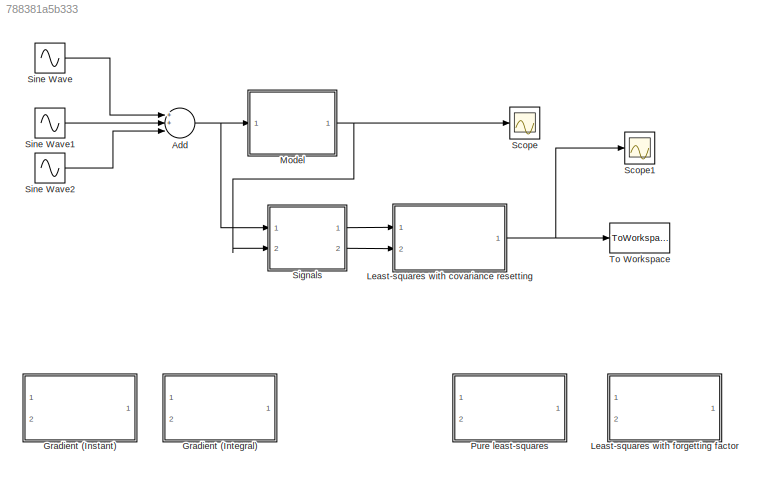
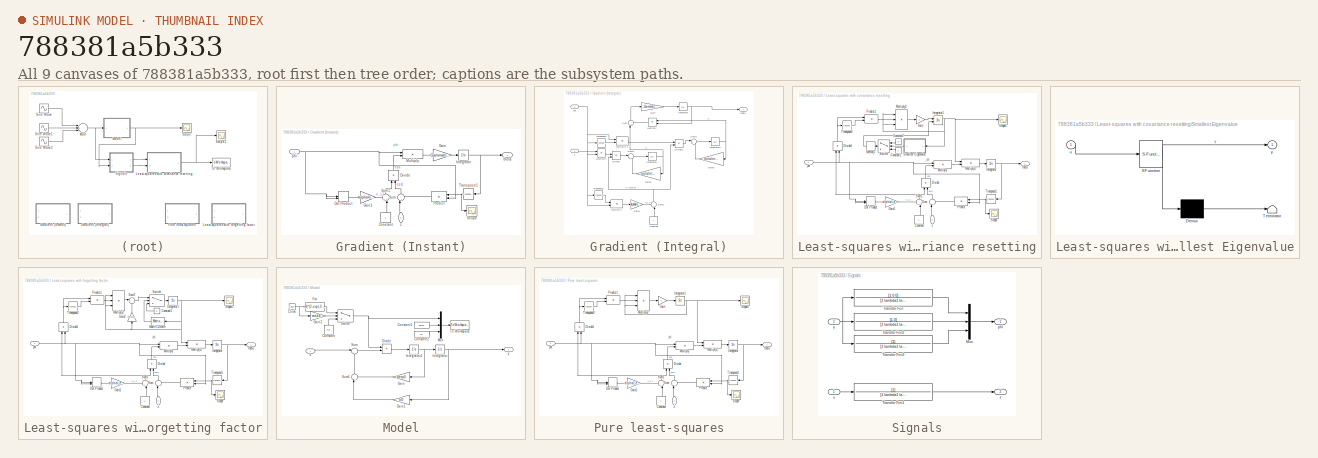
[diagram: thumbnail index - all 9 canvases of the model, root first then tree order]
MODEL slx_788381a5b333
KIND model
CONFIG AbsTol = auto
CONFIG EnableMultiTasking = off
CONFIG FixedStep = auto
CONFIG MaxStep = auto
CONFIG MinStep = auto
CONFIG RelTol = 1e-3
CONFIG SampleTimeConstraint = Unconstrained
CONFIG Solver = VariableStepAuto
CONFIG SolverName = VariableStepAuto
CONFIG StartTime = 0.0
CONFIG StopTime = 1000
BLOCK [Sum] Add
  InputSameDT = off
  Inputs = 3
  OutDataTypeStr = Inherit: Inherit via internal rule
  Ports = [3, 1]
  SaturateOnIntegerOverflow = off
BLOCK [SubSystem] Gradient (Instant)
  Commented = on
  Ports = [2, 1]
  RequestExecContextInheritance = off
BLOCK [Constant] Gradient (Instant)/Constant
BLOCK [Product] Gradient (Instant)/Divide
  InputSameDT = off
  Inputs = /*
  OutDataTypeStr = Inherit: Inherit via internal rule
  Ports = [2, 1]
  RndMeth = Floor
  SaturateOnIntegerOverflow = off
BLOCK [DotProduct] Gradient (Instant)/Dot Product
  OutDataTypeStr = Inherit: Inherit via internal rule
BLOCK [Gain] Gradient (Instant)/Gain
  Gain = GammaInstant
  Multiplication = Matrix(K*u) (u vector)
  OutDataTypeStr = Inherit: Inherit via internal rule
  ParamDataTypeStr = Inherit: Inherit via internal rule
  SaturateOnIntegerOverflow = off
BLOCK [Gain] Gradient (Instant)/Gain1
  Gain = alphaInstant
  OutDataTypeStr = Inherit: Inherit via internal rule
  ParamDataTypeStr = Inherit: Inherit via internal rule
  SaturateOnIntegerOverflow = off
BLOCK [Integrator] Gradient (Instant)/Integrator
  InitialCondition = theta0
  Ports = [1, 1]
BLOCK [Product] Gradient (Instant)/Multiply
  InputSameDT = off
  OutDataTypeStr = Inherit: Inherit via internal rule
  Ports = [2, 1]
  RndMeth = Floor
  SaturateOnIntegerOverflow = off
BLOCK [Product] Gradient (Instant)/Predict
  InputSameDT = off
  Multiplication = Matrix(*)
  OutDataTypeStr = Inherit: Inherit via internal rule
  Ports = [2, 1]
  RndMeth = Floor
  SaturateOnIntegerOverflow = off
BLOCK [Scope] Gradient (Instant)/Scope
  Floating = off
  NumInputPorts = 1
  Ports = [1]
  ScopeSpecificationString = Simulink.scopes.TimeScopeBlockCfg('CurrentConfiguration', extmgr.ConfigurationSet(extmgr.Configuration('Core','General UI',true),extmgr.Configuration('Core','Source UI',true),extmgr.Configuration('Sources','WiredSimulink',true,'DataLoggingVariableName','ScopeData2'),extmgr.Configuration('Visuals','Time Domain',true,'SerializedDisplays',{struct('MinYLimReal','-5.01543','MaxYLimReal','44.78656','YLa...<+1434ch>
BLOCK [Sum] Gradient (Instant)/Sum
  IconShape = round
  InputSameDT = off
  Inputs = |+-
  OutDataTypeStr = Inherit: Inherit via internal rule
  Ports = [2, 1]
  SaturateOnIntegerOverflow = off
BLOCK [Sum] Gradient (Instant)/Sum1
  IconShape = round
  InputSameDT = off
  Inputs = ++|
  OutDataTypeStr = Inherit: Inherit via internal rule
  Ports = [2, 1]
  SaturateOnIntegerOverflow = off
BLOCK [Math] Gradient (Instant)/Transpose1
  Operator = transpose
  Ports = [1, 1]
BLOCK [Inport] Gradient (Instant)/phi
  IconDisplay = Port number
BLOCK [Outport] Gradient (Instant)/theta
  IconDisplay = Port number
BLOCK [Inport] Gradient (Instant)/z
  IconDisplay = Port number
  Port = 2
BLOCK [SubSystem] Gradient (Integral)
  Commented = on
  Ports = [2, 1]
  RequestExecContextInheritance = off
BLOCK [Constant] Gradient (Integral)/Constant
BLOCK [Product] Gradient (Integral)/Divide
  InputSameDT = off
  Inputs = */
  OutDataTypeStr = Inherit: Inherit via internal rule
  Ports = [2, 1]
  RndMeth = Floor
  SaturateOnIntegerOverflow = off
BLOCK [Product] Gradient (Integral)/Divide1
  InputSameDT = off
  Inputs = */
  OutDataTypeStr = Inherit: Inherit via internal rule
  Ports = [2, 1]
  RndMeth = Floor
  SaturateOnIntegerOverflow = off
BLOCK [Gain] Gradient (Integral)/Gain
  Gain = -GammaIntegral
  Multiplication = Matrix(K*u) (u vector)
  OutDataTypeStr = Inherit: Inherit via internal rule
  ParamDataTypeStr = Inherit: Inherit via internal rule
  SaturateOnIntegerOverflow = off
BLOCK [Gain] Gradient (Integral)/Gain1
  Gain = alphaIntegral
  OutDataTypeStr = Inherit: Inherit via internal rule
  ParamDataTypeStr = Inherit: Inherit via internal rule
  SaturateOnIntegerOverflow = off
BLOCK [Gain] Gradient (Integral)/Gain2
  Gain = betaIntegral
  OutDataTypeStr = Inherit: Inherit via internal rule
  ParamDataTypeStr = Inherit: Inherit via internal rule
  SaturateOnIntegerOverflow = off
BLOCK [Gain] Gradient (Integral)/Gain3
  Gain = betaIntegral
  OutDataTypeStr = Inherit: Inherit via internal rule
  ParamDataTypeStr = Inherit: Inherit via internal rule
  SaturateOnIntegerOverflow = off
BLOCK [Integrator] Gradient (Integral)/Integrator
  InitialCondition = theta0
  Ports = [1, 1]
BLOCK [Integrator] Gradient (Integral)/Integrator1
  Ports = [1, 1]
BLOCK [Integrator] Gradient (Integral)/Integrator2
  Ports = [1, 1]
BLOCK [Product] Gradient (Integral)/Multiply
  InputSameDT = off
  Multiplication = Matrix(*)
  OutDataTypeStr = Inherit: Inherit via internal rule
  Ports = [2, 1]
  RndMeth = Floor
  SaturateOnIntegerOverflow = off
BLOCK [Product] Gradient (Integral)/Multiply1
  InputSameDT = off
  OutDataTypeStr = Inherit: Inherit via internal rule
  Ports = [2, 1]
  RndMeth = Floor
  SaturateOnIntegerOverflow = off
BLOCK [Product] Gradient (Integral)/Multiply1 
  InputSameDT = off
  Multiplication = Matrix(*)
  OutDataTypeStr = Inherit: Inherit via internal rule
  Ports = [2, 1]
  RndMeth = Floor
  SaturateOnIntegerOverflow = off
BLOCK [Product] Gradient (Integral)/Multiply1 1
  InputSameDT = off
  Multiplication = Matrix(*)
  OutDataTypeStr = Inherit: Inherit via internal rule
  Ports = [2, 1]
  RndMeth = Floor
  SaturateOnIntegerOverflow = off
BLOCK [Sum] Gradient (Integral)/Sum
  IconShape = round
  InputSameDT = off
  Inputs = |++
  OutDataTypeStr = Inherit: Inherit via internal rule
  Ports = [2, 1]
  SaturateOnIntegerOverflow = off
BLOCK [Sum] Gradient (Integral)/Sum1
  IconShape = round
  InputSameDT = off
  Inputs = ++|
  OutDataTypeStr = Inherit: Inherit via internal rule
  Ports = [2, 1]
  SaturateOnIntegerOverflow = off
BLOCK [Sum] Gradient (Integral)/Sum2
  IconShape = round
  InputSameDT = off
  Inputs = |--
  OutDataTypeStr = Inherit: Inherit via internal rule
  Ports = [2, 1]
  SaturateOnIntegerOverflow = off
BLOCK [Sum] Gradient (Integral)/Sum3
  IconShape = round
  InputSameDT = off
  Inputs = |+-
  OutDataTypeStr = Inherit: Inherit via internal rule
  Ports = [2, 1]
  SaturateOnIntegerOverflow = off
BLOCK [Math] Gradient (Integral)/Transpose1
  Operator = transpose
  Ports = [1, 1]
BLOCK [Math] Gradient (Integral)/Transpose2
  Operator = transpose
  Ports = [1, 1]
BLOCK [Inport] Gradient (Integral)/phi
  IconDisplay = Port number
BLOCK [Outport] Gradient (Integral)/theta
  IconDisplay = Port number
BLOCK [Inport] Gradient (Integral)/z
  IconDisplay = Port number
  Port = 2
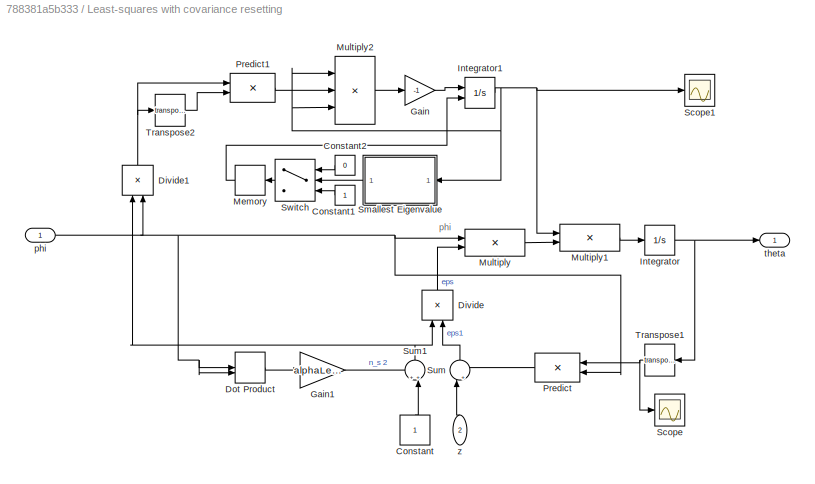
BLOCK [SubSystem] Least-squares with covariance resetting
  Ports = [2, 1]
  RequestExecContextInheritance = off
BLOCK [Constant] Least-squares with covariance resetting/Constant
BLOCK [Constant] Least-squares with covariance resetting/Constant1
BLOCK [Constant] Least-squares with covariance resetting/Constant2
  Value = 0
BLOCK [Product] Least-squares with covariance resetting/Divide
  InputSameDT = off
  Inputs = /*
  OutDataTypeStr = Inherit: Inherit via internal rule
  Ports = [2, 1]
  RndMeth = Floor
  SaturateOnIntegerOverflow = off
BLOCK [Product] Least-squares with covariance resetting/Divide1
  InputSameDT = off
  Inputs = /*
  OutDataTypeStr = Inherit: Inherit via internal rule
  Ports = [2, 1]
  RndMeth = Floor
  SaturateOnIntegerOverflow = off
BLOCK [DotProduct] Least-squares with covariance resetting/Dot Product
  OutDataTypeStr = Inherit: Inherit via internal rule
BLOCK [Gain] Least-squares with covariance resetting/Gain
  Gain = -1
  OutDataTypeStr = Inherit: Inherit via internal rule
  ParamDataTypeStr = Inherit: Inherit via internal rule
  SaturateOnIntegerOverflow = off
BLOCK [Gain] Least-squares with covariance resetting/Gain1
  Gain = alphaLeastSquares
  OutDataTypeStr = Inherit: Inherit via internal rule
  ParamDataTypeStr = Inherit: Inherit via internal rule
  SaturateOnIntegerOverflow = off
BLOCK [Integrator] Least-squares with covariance resetting/Integrator
  InitialCondition = theta0
  Ports = [1, 1]
BLOCK [Integrator] Least-squares with covariance resetting/Integrator1
  ExternalReset = rising
  InitialCondition = rho0*eye(3)
  Ports = [2, 1]
BLOCK [Memory] Least-squares with covariance resetting/Memory
BLOCK [Product] Least-squares with covariance resetting/Multiply
  InputSameDT = off
  OutDataTypeStr = Inherit: Inherit via internal rule
  Ports = [2, 1]
  RndMeth = Floor
  SaturateOnIntegerOverflow = off
BLOCK [Product] Least-squares with covariance resetting/Multiply1
  InputSameDT = off
  Multiplication = Matrix(*)
  OutDataTypeStr = Inherit: Inherit via internal rule
  Ports = [2, 1]
  RndMeth = Floor
  SaturateOnIntegerOverflow = off
BLOCK [Product] Least-squares with covariance resetting/Multiply2
  InputSameDT = off
  Inputs = 3
  Multiplication = Matrix(*)
  OutDataTypeStr = Inherit: Inherit via internal rule
  Ports = [3, 1]
  RndMeth = Floor
  SaturateOnIntegerOverflow = off
BLOCK [Product] Least-squares with covariance resetting/Predict
  InputSameDT = off
  Multiplication = Matrix(*)
  OutDataTypeStr = Inherit: Inherit via internal rule
  Ports = [2, 1]
  RndMeth = Floor
  SaturateOnIntegerOverflow = off
BLOCK [Product] Least-squares with covariance resetting/Predict1
  InputSameDT = off
  Multiplication = Matrix(*)
  OutDataTypeStr = Inherit: Inherit via internal rule
  Ports = [2, 1]
  RndMeth = Floor
  SaturateOnIntegerOverflow = off
BLOCK [Scope] Least-squares with covariance resetting/Scope
  Floating = off
  NumInputPorts = 1
  Ports = [1]
  ScopeSpecificationString = Simulink.scopes.TimeScopeBlockCfg('CurrentConfiguration', extmgr.ConfigurationSet(extmgr.Configuration('Core','General UI',true),extmgr.Configuration('Core','Source UI',true),extmgr.Configuration('Sources','WiredSimulink',true,'DataLoggingVariableName','ScopeData2'),extmgr.Configuration('Visuals','Time Domain',true,'SerializedDisplays',{struct('MinYLimReal','-2.49933','MaxYLimReal','22.49395','YLa...<+1434ch>
BLOCK [Scope] Least-squares with covariance resetting/Scope1
  Floating = off
  NumInputPorts = 1
  Ports = [1]
  ScopeSpecificationString = Simulink.scopes.TimeScopeBlockCfg('CurrentConfiguration', extmgr.ConfigurationSet(extmgr.Configuration('Core','General UI',true),extmgr.Configuration('Core','Source UI',true),extmgr.Configuration('Sources','WiredSimulink',true,'DataLoggingVariableName','ScopeData1'),extmgr.Configuration('Visuals','Time Domain',true,'SerializedDisplays',{struct('MinYLimReal','-41.25301','MaxYLimReal','115.69481','Y...<+1565ch>
BLOCK [SubSystem] Least-squares with covariance resetting/Smallest Eigenvalue
  ErrorFcn = Stateflow.Translate.translate
  PermitHierarchicalResolution = ExplicitOnly
  Ports = [1, 1]
  RequestExecContextInheritance = off
  SFBlockType = MATLAB Function
  TreatAsAtomicUnit = on
BLOCK [Demux] Least-squares with covariance resetting/Smallest Eigenvalue/ Demux 
  Outputs = 1
  Ports = [1, 1]
BLOCK [S-Function] Least-squares with covariance resetting/Smallest Eigenvalue/ SFunction 
  EnableBusSupport = on
  FunctionName = sf_sfun
  PortCounts = [1 2]
  Ports = [1, 2]
  SFcnIsStateOwnerBlock = off
  SFunctionDeploymentMode = off
  Tag = Stateflow S-Function problem4_9 2
BLOCK [Terminator] Least-squares with covariance resetting/Smallest Eigenvalue/ Terminator 
BLOCK [Inport] Least-squares with covariance resetting/Smallest Eigenvalue/u
  IconDisplay = Port number
BLOCK [Outport] Least-squares with covariance resetting/Smallest Eigenvalue/y
  IconDisplay = Port number
BLOCK [Sum] Least-squares with covariance resetting/Sum
  IconShape = round
  InputSameDT = off
  Inputs = |+-
  OutDataTypeStr = Inherit: Inherit via internal rule
  Ports = [2, 1]
  SaturateOnIntegerOverflow = off
BLOCK [Sum] Least-squares with covariance resetting/Sum1
  IconShape = round
  InputSameDT = off
  Inputs = ++|
  OutDataTypeStr = Inherit: Inherit via internal rule
  Ports = [2, 1]
  SaturateOnIntegerOverflow = off
BLOCK [Switch] Least-squares with covariance resetting/Switch
  Criteria = u2 > Threshold
  InputSameDT = off
  SaturateOnIntegerOverflow = off
  Threshold = rho1
BLOCK [Math] Least-squares with covariance resetting/Transpose1
  Operator = transpose
  Ports = [1, 1]
BLOCK [Math] Least-squares with covariance resetting/Transpose2
  Operator = transpose
  Ports = [1, 1]
BLOCK [Inport] Least-squares with covariance resetting/phi
  IconDisplay = Port number
BLOCK [Outport] Least-squares with covariance resetting/theta
  IconDisplay = Port number
BLOCK [Inport] Least-squares with covariance resetting/z
  IconDisplay = Port number
  Port = 2
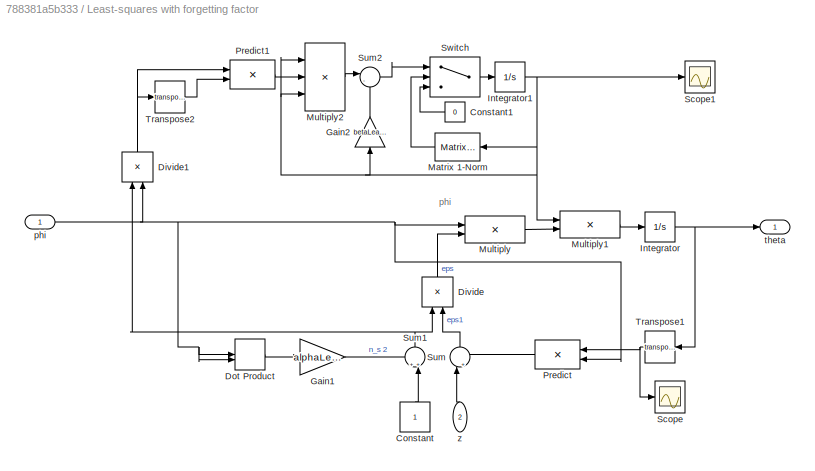
BLOCK [SubSystem] Least-squares with forgetting factor
  Commented = on
  Ports = [2, 1]
  RequestExecContextInheritance = off
BLOCK [Constant] Least-squares with forgetting factor/Constant
BLOCK [Constant] Least-squares with forgetting factor/Constant1
  Value = 0
BLOCK [Product] Least-squares with forgetting factor/Divide
  InputSameDT = off
  Inputs = /*
  OutDataTypeStr = Inherit: Inherit via internal rule
  Ports = [2, 1]
  RndMeth = Floor
  SaturateOnIntegerOverflow = off
BLOCK [Product] Least-squares with forgetting factor/Divide1
  InputSameDT = off
  Inputs = /*
  OutDataTypeStr = Inherit: Inherit via internal rule
  Ports = [2, 1]
  RndMeth = Floor
  SaturateOnIntegerOverflow = off
BLOCK [DotProduct] Least-squares with forgetting factor/Dot Product
  OutDataTypeStr = Inherit: Inherit via internal rule
BLOCK [Gain] Least-squares with forgetting factor/Gain1
  Gain = alphaLeastSquares
  OutDataTypeStr = Inherit: Inherit via internal rule
  ParamDataTypeStr = Inherit: Inherit via internal rule
  SaturateOnIntegerOverflow = off
BLOCK [Gain] Least-squares with forgetting factor/Gain2
  Gain = betaLeast
  OutDataTypeStr = Inherit: Inherit via internal rule
  ParamDataTypeStr = Inherit: Inherit via internal rule
  SaturateOnIntegerOverflow = off
BLOCK [Integrator] Least-squares with forgetting factor/Integrator
  InitialCondition = theta0
  Ports = [1, 1]
BLOCK [Integrator] Least-squares with forgetting factor/Integrator1
  InitialCondition = P0
  Ports = [1, 1]
BLOCK [Reference] Least-squares with forgetting factor/Matrix 1-Norm  REF=dspmtrx3/Matrix 
1-Norm
  Ports = [1, 1]
  SourceBlock = dspmtrx3/Matrix \n1-Norm
  SourceProductBaseCode = DS
  SourceProductName = DSP System Toolbox
  SourceType = Matrix 1-Norm
BLOCK [Product] Least-squares with forgetting factor/Multiply
  InputSameDT = off
  OutDataTypeStr = Inherit: Inherit via internal rule
  Ports = [2, 1]
  RndMeth = Floor
  SaturateOnIntegerOverflow = off
BLOCK [Product] Least-squares with forgetting factor/Multiply1
  InputSameDT = off
  Multiplication = Matrix(*)
  OutDataTypeStr = Inherit: Inherit via internal rule
  Ports = [2, 1]
  RndMeth = Floor
  SaturateOnIntegerOverflow = off
BLOCK [Product] Least-squares with forgetting factor/Multiply2
  InputSameDT = off
  Inputs = 3
  Multiplication = Matrix(*)
  OutDataTypeStr = Inherit: Inherit via internal rule
  Ports = [3, 1]
  RndMeth = Floor
  SaturateOnIntegerOverflow = off
BLOCK [Product] Least-squares with forgetting factor/Predict
  InputSameDT = off
  Multiplication = Matrix(*)
  OutDataTypeStr = Inherit: Inherit via internal rule
  Ports = [2, 1]
  RndMeth = Floor
  SaturateOnIntegerOverflow = off
BLOCK [Product] Least-squares with forgetting factor/Predict1
  InputSameDT = off
  Multiplication = Matrix(*)
  OutDataTypeStr = Inherit: Inherit via internal rule
  Ports = [2, 1]
  RndMeth = Floor
  SaturateOnIntegerOverflow = off
BLOCK [Scope] Least-squares with forgetting factor/Scope
  Floating = off
  NumInputPorts = 1
  Ports = [1]
  ScopeSpecificationString = Simulink.scopes.TimeScopeBlockCfg('CurrentConfiguration', extmgr.ConfigurationSet(extmgr.Configuration('Core','General UI',true),extmgr.Configuration('Core','Source UI',true),extmgr.Configuration('Sources','WiredSimulink',true,'DataLoggingVariableName','ScopeData2'),extmgr.Configuration('Visuals','Time Domain',true,'SerializedDisplays',{struct('MinYLimReal','-4.60959','MaxYLimReal','34.81671','YLa...<+1434ch>
BLOCK [Scope] Least-squares with forgetting factor/Scope1
  Floating = off
  NumInputPorts = 1
  Ports = [1]
  ScopeSpecificationString = Simulink.scopes.TimeScopeBlockCfg('CurrentConfiguration', extmgr.ConfigurationSet(extmgr.Configuration('Core','General UI',true),extmgr.Configuration('Core','Source UI',true),extmgr.Configuration('Sources','WiredSimulink',true,'DataLoggingVariableName','ScopeData1'),extmgr.Configuration('Visuals','Time Domain',true,'SerializedDisplays',{struct('MinYLimReal','-8054.54497','MaxYLimReal','31410.77184...<+1555ch>
BLOCK [Sum] Least-squares with forgetting factor/Sum
  IconShape = round
  InputSameDT = off
  Inputs = |+-
  OutDataTypeStr = Inherit: Inherit via internal rule
  Ports = [2, 1]
  SaturateOnIntegerOverflow = off
BLOCK [Sum] Least-squares with forgetting factor/Sum1
  IconShape = round
  InputSameDT = off
  Inputs = ++|
  OutDataTypeStr = Inherit: Inherit via internal rule
  Ports = [2, 1]
  SaturateOnIntegerOverflow = off
BLOCK [Sum] Least-squares with forgetting factor/Sum2
  IconShape = round
  InputSameDT = off
  Inputs = |-+
  OutDataTypeStr = Inherit: Inherit via internal rule
  Ports = [2, 1]
  SaturateOnIntegerOverflow = off
BLOCK [Switch] Least-squares with forgetting factor/Switch
  Criteria = u2 > Threshold
  InputSameDT = off
  SaturateOnIntegerOverflow = off
  Threshold = R0
BLOCK [Math] Least-squares with forgetting factor/Transpose1
  Operator = transpose
  Ports = [1, 1]
BLOCK [Math] Least-squares with forgetting factor/Transpose2
  Operator = transpose
  Ports = [1, 1]
BLOCK [Inport] Least-squares with forgetting factor/phi
  IconDisplay = Port number
BLOCK [Outport] Least-squares with forgetting factor/theta
  IconDisplay = Port number
BLOCK [Inport] Least-squares with forgetting factor/z
  IconDisplay = Port number
  Port = 2
BLOCK [SubSystem] Model
  Ports = [1, 1]
  RequestExecContextInheritance = off
BLOCK [Clock] Model/Clock
BLOCK [Constant] Model/Constant
  Value = m0
BLOCK [Constant] Model/Constant1
  Value = beta0
BLOCK [Constant] Model/Constant2
  Value = k0
BLOCK [Product] Model/Divide
  InputSameDT = off
  Inputs = /*
  OutDataTypeStr = Inherit: Inherit via internal rule
  Ports = [2, 1]
  RndMeth = Floor
  SaturateOnIntegerOverflow = off
BLOCK [Fcn] Model/Fcn
  Expr = m0*(2-exp(-0.01*(u(1) - 20)))
BLOCK [Gain] Model/Gain
  Gain = beta0
  OutDataTypeStr = Inherit: Inherit via internal rule
  ParamDataTypeStr = Inherit: Inherit via internal rule
  SaturateOnIntegerOverflow = off
BLOCK [Gain] Model/Gain1
  Gain = k0
  OutDataTypeStr = Inherit: Inherit via internal rule
  ParamDataTypeStr = Inherit: Inherit via internal rule
  SaturateOnIntegerOverflow = off
BLOCK [Gain] Model/Gain2
  Gain = taskE
  OutDataTypeStr = Inherit: Inherit via internal rule
  ParamDataTypeStr = Inherit: Inherit via internal rule
  SaturateOnIntegerOverflow = off
BLOCK [Integrator] Model/Integrator
  InitialCondition = y0
  Ports = [1, 1]
BLOCK [Integrator] Model/Integrator1
  InitialCondition = y_dot0
  Ports = [1, 1]
BLOCK [Mux] Model/Mux
  DisplayOption = bar
  Inputs = 3
  Ports = [3, 1]
BLOCK [Sum] Model/Sum
  IconShape = round
  InputSameDT = off
  Inputs = |+-
  OutDataTypeStr = Inherit: Inherit via internal rule
  Ports = [2, 1]
  SaturateOnIntegerOverflow = off
BLOCK [Sum] Model/Sum1
  IconShape = round
  InputSameDT = off
  Inputs = |++
  OutDataTypeStr = Inherit: Inherit via internal rule
  Ports = [2, 1]
  SaturateOnIntegerOverflow = off
BLOCK [Switch] Model/Switch
  Criteria = u2 > Threshold
  InputSameDT = off
  SaturateOnIntegerOverflow = off
  Threshold = 20
BLOCK [ToWorkspace] Model/To Workspace
  FixptAsFi = on
  MaxDataPoints = inf
  Ports = [1]
  SampleTime = -1
  Save2DSignal = 3-D array (concatenate along third dimension)
  SaveFormat = Timeseries
  VariableName = model
BLOCK [Inport] Model/u
  IconDisplay = Port number
BLOCK [Outport] Model/y
  IconDisplay = Port number
BLOCK [SubSystem] Pure least-squares
  Commented = on
  Ports = [2, 1]
  RequestExecContextInheritance = off
BLOCK [Constant] Pure least-squares/Constant
BLOCK [Product] Pure least-squares/Divide
  InputSameDT = off
  Inputs = /*
  OutDataTypeStr = Inherit: Inherit via internal rule
  Ports = [2, 1]
  RndMeth = Floor
  SaturateOnIntegerOverflow = off
BLOCK [Product] Pure least-squares/Divide1
  InputSameDT = off
  Inputs = /*
  OutDataTypeStr = Inherit: Inherit via internal rule
  Ports = [2, 1]
  RndMeth = Floor
  SaturateOnIntegerOverflow = off
BLOCK [DotProduct] Pure least-squares/Dot Product
  OutDataTypeStr = Inherit: Inherit via internal rule
BLOCK [Gain] Pure least-squares/Gain
  Gain = -1
  OutDataTypeStr = Inherit: Inherit via internal rule
  ParamDataTypeStr = Inherit: Inherit via internal rule
  SaturateOnIntegerOverflow = off
BLOCK [Gain] Pure least-squares/Gain1
  Gain = alphaLeastSquares
  OutDataTypeStr = Inherit: Inherit via internal rule
  ParamDataTypeStr = Inherit: Inherit via internal rule
  SaturateOnIntegerOverflow = off
BLOCK [Integrator] Pure least-squares/Integrator
  InitialCondition = theta0
  Ports = [1, 1]
BLOCK [Integrator] Pure least-squares/Integrator1
  InitialCondition = P0
  Ports = [1, 1]
BLOCK [Product] Pure least-squares/Multiply
  InputSameDT = off
  OutDataTypeStr = Inherit: Inherit via internal rule
  Ports = [2, 1]
  RndMeth = Floor
  SaturateOnIntegerOverflow = off
BLOCK [Product] Pure least-squares/Multiply1
  InputSameDT = off
  Multiplication = Matrix(*)
  OutDataTypeStr = Inherit: Inherit via internal rule
  Ports = [2, 1]
  RndMeth = Floor
  SaturateOnIntegerOverflow = off
BLOCK [Product] Pure least-squares/Multiply2
  InputSameDT = off
  Inputs = 3
  Multiplication = Matrix(*)
  OutDataTypeStr = Inherit: Inherit via internal rule
  Ports = [3, 1]
  RndMeth = Floor
  SaturateOnIntegerOverflow = off
BLOCK [Product] Pure least-squares/Predict
  InputSameDT = off
  Multiplication = Matrix(*)
  OutDataTypeStr = Inherit: Inherit via internal rule
  Ports = [2, 1]
  RndMeth = Floor
  SaturateOnIntegerOverflow = off
BLOCK [Product] Pure least-squares/Predict1
  InputSameDT = off
  Multiplication = Matrix(*)
  OutDataTypeStr = Inherit: Inherit via internal rule
  Ports = [2, 1]
  RndMeth = Floor
  SaturateOnIntegerOverflow = off
BLOCK [Scope] Pure least-squares/Scope
  Floating = off
  NumInputPorts = 1
  Ports = [1]
  ScopeSpecificationString = Simulink.scopes.TimeScopeBlockCfg('CurrentConfiguration', extmgr.ConfigurationSet(extmgr.Configuration('Core','General UI',true),extmgr.Configuration('Core','Source UI',true),extmgr.Configuration('Sources','WiredSimulink',true,'DataLoggingVariableName','ScopeData2'),extmgr.Configuration('Visuals','Time Domain',true,'SerializedDisplays',{struct('MinYLimReal','-3.8281','MaxYLimReal','34.45283','YLab...<+1432ch>
BLOCK [Scope] Pure least-squares/Scope1
  Floating = off
  NumInputPorts = 1
  Ports = [1]
  ScopeSpecificationString = Simulink.scopes.TimeScopeBlockCfg('CurrentConfiguration', extmgr.ConfigurationSet(extmgr.Configuration('Core','General UI',true),extmgr.Configuration('Core','Source UI',true),extmgr.Configuration('Sources','WiredSimulink',true,'DataLoggingVariableName','ScopeData1'),extmgr.Configuration('Visuals','Time Domain',true,'SerializedDisplays',{struct('MinYLimReal','-14.57722','MaxYLimReal','112.73083','Y...<+1539ch>
BLOCK [Sum] Pure least-squares/Sum
  IconShape = round
  InputSameDT = off
  Inputs = |+-
  OutDataTypeStr = Inherit: Inherit via internal rule
  Ports = [2, 1]
  SaturateOnIntegerOverflow = off
BLOCK [Sum] Pure least-squares/Sum1
  IconShape = round
  InputSameDT = off
  Inputs = ++|
  OutDataTypeStr = Inherit: Inherit via internal rule
  Ports = [2, 1]
  SaturateOnIntegerOverflow = off
BLOCK [Math] Pure least-squares/Transpose1
  Operator = transpose
  Ports = [1, 1]
BLOCK [Math] Pure least-squares/Transpose2
  Operator = transpose
  Ports = [1, 1]
BLOCK [Inport] Pure least-squares/phi
  IconDisplay = Port number
BLOCK [Outport] Pure least-squares/theta
  IconDisplay = Port number
BLOCK [Inport] Pure least-squares/z
  IconDisplay = Port number
  Port = 2
BLOCK [Scope] Scope
  Floating = off
  NumInputPorts = 1
  Ports = [1]
  ScopeSpecificationString = Simulink.scopes.TimeScopeBlockCfg('CurrentConfiguration', extmgr.ConfigurationSet(extmgr.Configuration('Core','General UI',true),extmgr.Configuration('Core','Source UI',true),extmgr.Configuration('Sources','WiredSimulink',true),extmgr.Configuration('Visuals','Time Domain',true,'SerializedDisplays',{struct('MinYLimReal','-1.36478','MaxYLimReal','9.66768','YLabelReal','','MinYLimMag','0.00000','MaxY...<+1355ch>
BLOCK [Scope] Scope1
  Floating = off
  NumInputPorts = 1
  Ports = [1]
  ScopeSpecificationString = Simulink.scopes.TimeScopeBlockCfg('CurrentConfiguration', extmgr.ConfigurationSet(extmgr.Configuration('Core','General UI',true),extmgr.Configuration('Core','Source UI',true),extmgr.Configuration('Sources','WiredSimulink',true,'DataLoggingVariableName','ScopeData1'),extmgr.Configuration('Visuals','Time Domain',true,'SerializedDisplays',{struct('MinYLimReal','-2.66082','MaxYLimReal','23.94731','YLa...<+1484ch>
BLOCK [SubSystem] Signals
  Ports = [2, 2]
  RequestExecContextInheritance = off
BLOCK [Mux] Signals/Mux
  DisplayOption = bar
  Inputs = 3
  Ports = [3, 1]
BLOCK [TransferFcn] Signals/Transfer Fcn
  Denominator = [1 lambda1 lambda2]
  Numerator = [1 0 0]
BLOCK [TransferFcn] Signals/Transfer Fcn1
  Denominator = [1 lambda1 lambda2]
BLOCK [TransferFcn] Signals/Transfer Fcn2
  Denominator = [1 lambda1 lambda2]
  Numerator = [1 0]
BLOCK [TransferFcn] Signals/Transfer Fcn3
  Denominator = [1 lambda1 lambda2]
BLOCK [Outport] Signals/phi
  IconDisplay = Port number
BLOCK [Inport] Signals/u 
  IconDisplay = Port number
BLOCK [Inport] Signals/y 
  IconDisplay = Port number
  Port = 2
BLOCK [Outport] Signals/z
  IconDisplay = Port number
  Port = 2
BLOCK [Sin] Sine Wave
  Amplitude = 3
  Frequency = 0.1
  Ports = [0, 1]
  SampleTime = 0
BLOCK [Sin] Sine Wave1
  Frequency = 5
  Ports = [0, 1]
  SampleTime = 0
BLOCK [Sin] Sine Wave2
  Amplitude = 10
  Frequency = 3
  Ports = [0, 1]
  SampleTime = 0
BLOCK [ToWorkspace] To Workspace
  FixptAsFi = on
  MaxDataPoints = inf
  Ports = [1]
  SampleTime = -1
  Save2DSignal = 3-D array (concatenate along third dimension)
  SaveFormat = Timeseries
  VariableName = results
ANNOTATION Gradient (Instant): phi
ANNOTATION Least-squares with covariance resetting: phi
ANNOTATION Least-squares with forgetting factor: phi
ANNOTATION Pure least-squares: phi
NET Add:1 -> Model:1, Signals:1
LINE Gradient (Instant)/Constant:1 -> Gradient (Instant)/Sum1:2
LINE Gradient (Instant)/Divide:1 -> Gradient (Instant)/Multiply:2
LINE Gradient (Instant)/Dot Product:1 -> Gradient (Instant)/Gain1:1
LINE Gradient (Instant)/Gain1:1 -> Gradient (Instant)/Sum1:1
LINE Gradient (Instant)/Gain:1 -> Gradient (Instant)/Integrator:1
NET Gradient (Instant)/Integrator:1 -> Gradient (Instant)/Transpose1:1, Gradient (Instant)/theta:1
LINE Gradient (Instant)/Multiply:1 -> Gradient (Instant)/Gain:1
LINE Gradient (Instant)/Predict:1 -> Gradient (Instant)/Sum:2
LINE Gradient (Instant)/Sum1:1 -> Gradient (Instant)/Divide:1
LINE Gradient (Instant)/Sum:1 -> Gradient (Instant)/Divide:2
NET Gradient (Instant)/Transpose1:1 -> Gradient (Instant)/Predict:1, Gradient (Instant)/Scope:1
NET Gradient (Instant)/phi:1 -> Gradient (Instant)/Dot Product:1, Gradient (Instant)/Dot Product:2, Gradient (Instant)/Multiply:1, Gradient (Instant)/Predict:2
LINE Gradient (Instant)/z:1 -> Gradient (Instant)/Sum:1
LINE Gradient (Integral)/Constant:1 -> Gradient (Integral)/Sum1:2
LINE Gradient (Integral)/Divide1:1 -> Gradient (Integral)/Sum3:1
LINE Gradient (Integral)/Divide:1 -> Gradient (Integral)/Sum2:1
LINE Gradient (Integral)/Gain1:1 -> Gradient (Integral)/Sum1:1
LINE Gradient (Integral)/Gain2:1 -> Gradient (Integral)/Sum2:2
LINE Gradient (Integral)/Gain3:1 -> Gradient (Integral)/Sum3:2
LINE Gradient (Integral)/Gain:1 -> Gradient (Integral)/Integrator:1
NET Gradient (Integral)/Integrator1:1 -> Gradient (Integral)/Gain2:1, Gradient (Integral)/Sum:1
NET Gradient (Integral)/Integrator2:1 -> Gradient (Integral)/Gain3:1, Gradient (Integral)/Multiply:1
NET Gradient (Integral)/Integrator:1 -> Gradient (Integral)/Multiply:2, Gradient (Integral)/theta:1
LINE Gradient (Integral)/Multiply1 1:1 -> Gradient (Integral)/Divide1:1
LINE Gradient (Integral)/Multiply1 :1 -> Gradient (Integral)/Gain1:1
LINE Gradient (Integral)/Multiply1:1 -> Gradient (Integral)/Divide:1
LINE Gradient (Integral)/Multiply:1 -> Gradient (Integral)/Sum:2
NET Gradient (Integral)/Sum1:1 -> Gradient (Integral)/Divide1:2, Gradient (Integral)/Divide:2
LINE Gradient (Integral)/Sum2:1 -> Gradient (Integral)/Integrator1:1
LINE Gradient (Integral)/Sum3:1 -> Gradient (Integral)/Integrator2:1
LINE Gradient (Integral)/Sum:1 -> Gradient (Integral)/Gain:1
LINE Gradient (Integral)/Transpose1:1 -> Gradient (Integral)/Multiply1 1:2
LINE Gradient (Integral)/Transpose2:1 -> Gradient (Integral)/Multiply1 :1
NET Gradient (Integral)/phi:1 -> Gradient (Integral)/Multiply1 1:1, Gradient (Integral)/Multiply1 :2, Gradient (Integral)/Multiply1:2, Gradient (Integral)/Transpose1:1, Gradient (Integral)/Transpose2:1
LINE Gradient (Integral)/z:1 -> Gradient (Integral)/Multiply1:1
LINE Least-squares with covariance resetting/Constant1:1 -> Least-squares with covariance resetting/Switch:3
LINE Least-squares with covariance resetting/Constant2:1 -> Least-squares with covariance resetting/Switch:1
LINE Least-squares with covariance resetting/Constant:1 -> Least-squares with covariance resetting/Sum1:2
NET Least-squares with covariance resetting/Divide1:1 -> Least-squares with covariance resetting/Predict1:1, Least-squares with covariance resetting/Transpose2:1
LINE Least-squares with covariance resetting/Divide:1 -> Least-squares with covariance resetting/Multiply:2
LINE Least-squares with covariance resetting/Dot Product:1 -> Least-squares with covariance resetting/Gain1:1
LINE Least-squares with covariance resetting/Gain1:1 -> Least-squares with covariance resetting/Sum1:1
LINE Least-squares with covariance resetting/Gain:1 -> Least-squares with covariance resetting/Integrator1:1
NET Least-squares with covariance resetting/Integrator1:1 -> Least-squares with covariance resetting/Multiply1:1, Least-squares with covariance resetting/Multiply2:1, Least-squares with covariance resetting/Multiply2:3, Least-squares with covariance resetting/Scope1:1, Least-squares with covariance resetting/Smallest Eigenvalue:1
NET Least-squares with covariance resetting/Integrator:1 -> Least-squares with covariance resetting/Transpose1:1, Least-squares with covariance resetting/theta:1
LINE Least-squares with covariance resetting/Memory:1 -> Least-squares with covariance resetting/Integrator1:2
LINE Least-squares with covariance resetting/Multiply1:1 -> Least-squares with covariance resetting/Integrator:1
LINE Least-squares with covariance resetting/Multiply2:1 -> Least-squares with covariance resetting/Gain:1
LINE Least-squares with covariance resetting/Multiply:1 -> Least-squares with covariance resetting/Multiply1:2
LINE Least-squares with covariance resetting/Predict1:1 -> Least-squares with covariance resetting/Multiply2:2
LINE Least-squares with covariance resetting/Predict:1 -> Least-squares with covariance resetting/Sum:2
LINE Least-squares with covariance resetting/Smallest Eigenvalue:1 -> Least-squares with covariance resetting/Switch:2
NET Least-squares with covariance resetting/Sum1:1 -> Least-squares with covariance resetting/Divide1:1, Least-squares with covariance resetting/Divide:1
LINE Least-squares with covariance resetting/Sum:1 -> Least-squares with covariance resetting/Divide:2
LINE Least-squares with covariance resetting/Switch:1 -> Least-squares with covariance resetting/Memory:1
NET Least-squares with covariance resetting/Transpose1:1 -> Least-squares with covariance resetting/Predict:1, Least-squares with covariance resetting/Scope:1
LINE Least-squares with covariance resetting/Transpose2:1 -> Least-squares with covariance resetting/Predict1:2
NET Least-squares with covariance resetting/phi:1 -> Least-squares with covariance resetting/Divide1:2, Least-squares with covariance resetting/Dot Product:1, Least-squares with covariance resetting/Dot Product:2, Least-squares with covariance resetting/Multiply:1, Least-squares with covariance resetting/Predict:2
LINE Least-squares with covariance resetting/z:1 -> Least-squares with covariance resetting/Sum:1
NET Least-squares with covariance resetting:1 -> Scope1:1, To Workspace:1
LINE Least-squares with forgetting factor/Constant1:1 -> Least-squares with forgetting factor/Switch:3
LINE Least-squares with forgetting factor/Constant:1 -> Least-squares with forgetting factor/Sum1:2
NET Least-squares with forgetting factor/Divide1:1 -> Least-squares with forgetting factor/Predict1:1, Least-squares with forgetting factor/Transpose2:1
LINE Least-squares with forgetting factor/Divide:1 -> Least-squares with forgetting factor/Multiply:2
LINE Least-squares with forgetting factor/Dot Product:1 -> Least-squares with forgetting factor/Gain1:1
LINE Least-squares with forgetting factor/Gain1:1 -> Least-squares with forgetting factor/Sum1:1
LINE Least-squares with forgetting factor/Gain2:1 -> Least-squares with forgetting factor/Sum2:2
NET Least-squares with forgetting factor/Integrator1:1 -> Least-squares with forgetting factor/Gain2:1, Least-squares with forgetting factor/Matrix 1-Norm:1, Least-squares with forgetting factor/Multiply1:1, Least-squares with forgetting factor/Multiply2:1, Least-squares with forgetting factor/Multiply2:3, Least-squares with forgetting factor/Scope1:1
NET Least-squares with forgetting factor/Integrator:1 -> Least-squares with forgetting factor/Transpose1:1, Least-squares with forgetting factor/theta:1
LINE Least-squares with forgetting factor/Matrix 1-Norm:1 -> Least-squares with forgetting factor/Switch:2
LINE Least-squares with forgetting factor/Multiply1:1 -> Least-squares with forgetting factor/Integrator:1
LINE Least-squares with forgetting factor/Multiply2:1 -> Least-squares with forgetting factor/Sum2:1
LINE Least-squares with forgetting factor/Multiply:1 -> Least-squares with forgetting factor/Multiply1:2
LINE Least-squares with forgetting factor/Predict1:1 -> Least-squares with forgetting factor/Multiply2:2
LINE Least-squares with forgetting factor/Predict:1 -> Least-squares with forgetting factor/Sum:2
NET Least-squares with forgetting factor/Sum1:1 -> Least-squares with forgetting factor/Divide1:1, Least-squares with forgetting factor/Divide:1
LINE Least-squares with forgetting factor/Sum2:1 -> Least-squares with forgetting factor/Switch:1
LINE Least-squares with forgetting factor/Sum:1 -> Least-squares with forgetting factor/Divide:2
LINE Least-squares with forgetting factor/Switch:1 -> Least-squares with forgetting factor/Integrator1:1
NET Least-squares with forgetting factor/Transpose1:1 -> Least-squares with forgetting factor/Predict:1, Least-squares with forgetting factor/Scope:1
LINE Least-squares with forgetting factor/Transpose2:1 -> Least-squares with forgetting factor/Predict1:2
NET Least-squares with forgetting factor/phi:1 -> Least-squares with forgetting factor/Divide1:2, Least-squares with forgetting factor/Dot Product:1, Least-squares with forgetting factor/Dot Product:2, Least-squares with forgetting factor/Multiply:1, Least-squares with forgetting factor/Predict:2
LINE Least-squares with forgetting factor/z:1 -> Least-squares with forgetting factor/Sum:1
NET Model/Clock:1 -> Model/Fcn:1, Model/Gain2:1
LINE Model/Constant1:1 -> Model/Mux:2
LINE Model/Constant2:1 -> Model/Mux:3
LINE Model/Constant:1 -> Model/Switch:3
LINE Model/Divide:1 -> Model/Integrator1:1
LINE Model/Fcn:1 -> Model/Switch:1
LINE Model/Gain1:1 -> Model/Sum1:1
LINE Model/Gain2:1 -> Model/Switch:2
LINE Model/Gain:1 -> Model/Sum1:2
NET Model/Integrator1:1 -> Model/Gain:1, Model/Integrator:1
NET Model/Integrator:1 -> Model/Gain1:1, Model/y:1
LINE Model/Mux:1 -> Model/To Workspace:1
LINE Model/Sum1:1 -> Model/Sum:2
LINE Model/Sum:1 -> Model/Divide:2
NET Model/Switch:1 -> Model/Divide:1, Model/Mux:1
LINE Model/u:1 -> Model/Sum:1
NET Model:1 -> Scope:1, Signals:2
LINE Pure least-squares/Constant:1 -> Pure least-squares/Sum1:2
NET Pure least-squares/Divide1:1 -> Pure least-squares/Predict1:1, Pure least-squares/Transpose2:1
LINE Pure least-squares/Divide:1 -> Pure least-squares/Multiply:2
LINE Pure least-squares/Dot Product:1 -> Pure least-squares/Gain1:1
LINE Pure least-squares/Gain1:1 -> Pure least-squares/Sum1:1
LINE Pure least-squares/Gain:1 -> Pure least-squares/Integrator1:1
NET Pure least-squares/Integrator1:1 -> Pure least-squares/Multiply1:1, Pure least-squares/Multiply2:1, Pure least-squares/Multiply2:3, Pure least-squares/Scope1:1
NET Pure least-squares/Integrator:1 -> Pure least-squares/Transpose1:1, Pure least-squares/theta:1
LINE Pure least-squares/Multiply1:1 -> Pure least-squares/Integrator:1
LINE Pure least-squares/Multiply2:1 -> Pure least-squares/Gain:1
LINE Pure least-squares/Multiply:1 -> Pure least-squares/Multiply1:2
LINE Pure least-squares/Predict1:1 -> Pure least-squares/Multiply2:2
LINE Pure least-squares/Predict:1 -> Pure least-squares/Sum:2
NET Pure least-squares/Sum1:1 -> Pure least-squares/Divide1:1, Pure least-squares/Divide:1
LINE Pure least-squares/Sum:1 -> Pure least-squares/Divide:2
NET Pure least-squares/Transpose1:1 -> Pure least-squares/Predict:1, Pure least-squares/Scope:1
LINE Pure least-squares/Transpose2:1 -> Pure least-squares/Predict1:2
NET Pure least-squares/phi:1 -> Pure least-squares/Divide1:2, Pure least-squares/Dot Product:1, Pure least-squares/Dot Product:2, Pure least-squares/Multiply:1, Pure least-squares/Predict:2
LINE Pure least-squares/z:1 -> Pure least-squares/Sum:1
LINE Signals/Mux:1 -> Signals/phi:1
LINE Signals/Transfer Fcn1:1 -> Signals/z:1
LINE Signals/Transfer Fcn2:1 -> Signals/Mux:2
LINE Signals/Transfer Fcn3:1 -> Signals/Mux:3
LINE Signals/Transfer Fcn:1 -> Signals/Mux:1
LINE Signals/u :1 -> Signals/Transfer Fcn1:1
NET Signals/y :1 -> Signals/Transfer Fcn2:1, Signals/Transfer Fcn3:1, Signals/Transfer Fcn:1
LINE Signals:1 -> Least-squares with covariance resetting:1
LINE Signals:2 -> Least-squares with covariance resetting:2
LINE Sine Wave1:1 -> Add:2
LINE Sine Wave2:1 -> Add:3
LINE Sine Wave:1 -> Add:1
note: NET lines group one-source signal fan-out (src -> all destinations, sorted); 1:1 wires keep LINE
CHART Least-squares with covariance resetting/Smallest Eigenvalue states=1 transitions=1
  STATE_LABEL 'eML_blk_kernel()'
  STATE_LABEL 'SCRIPT:\nfunction y = fcn(u)\n\ny = min(real(eig(u)));\n'
